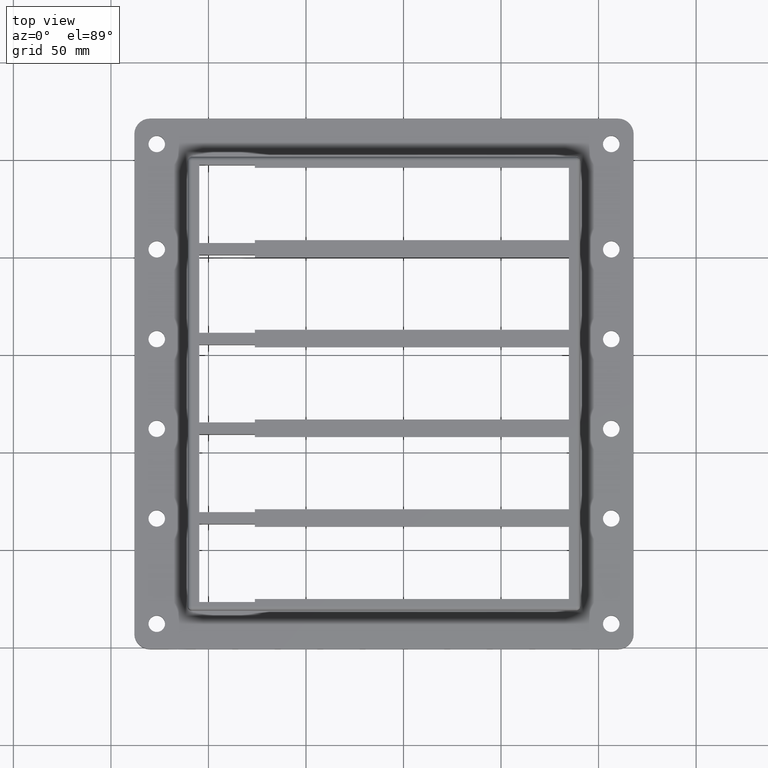
[diagram: clean part render]
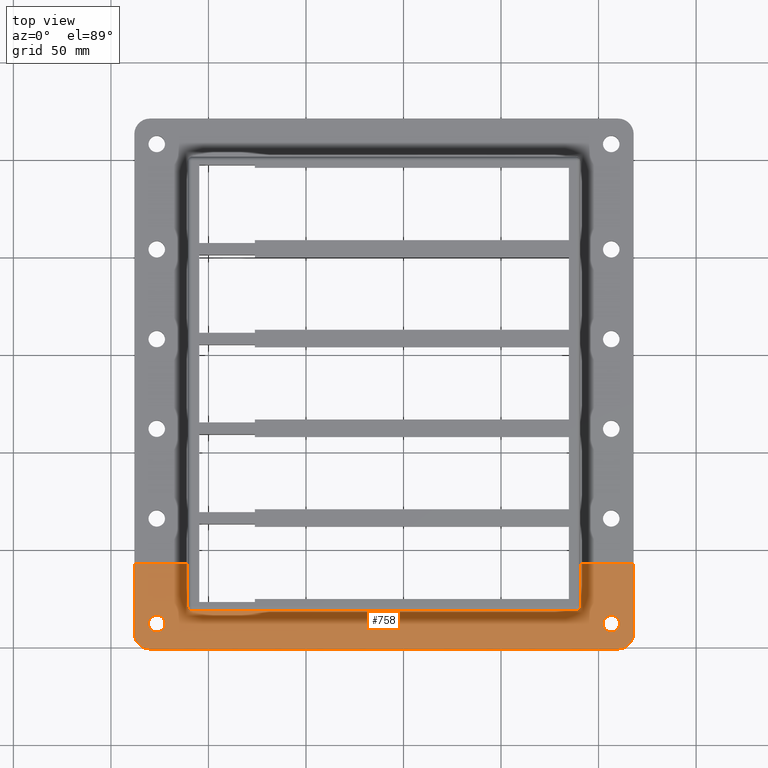
[diagram: same view with one face highlighted and labeled with its STEP entity id]
A machine part, top view. The second image highlights one B-rep face of the part: STEP entity #758.
In plain terms, the highlighted planar face has unit normal (0, 0, 1).
Its self-contained STEP definition (entity closure, byte-faithful):
#101=(
BOUNDED_CURVE()
B_SPLINE_CURVE(3,(#11080,#11081,#11082,#11083),.UNSPECIFIED.,.F.,.F.)
B_SPLINE_CURVE_WITH_KNOTS((4,4),(0.,1.),.UNSPECIFIED.)
CURVE()
GEOMETRIC_REPRESENTATION_ITEM()
RATIONAL_B_SPLINE_CURVE((1.,0.804755803080615,0.804755803080615,1.))
REPRESENTATION_ITEM('')
);
#102=(
BOUNDED_CURVE()
B_SPLINE_CURVE(3,(#11097,#11098,#11099,#11100),.UNSPECIFIED.,.F.,.F.)
B_SPLINE_CURVE_WITH_KNOTS((4,4),(0.,1.),.UNSPECIFIED.)
CURVE()
GEOMETRIC_REPRESENTATION_ITEM()
RATIONAL_B_SPLINE_CURVE((1.,0.804755803080618,0.804755803080618,1.))
REPRESENTATION_ITEM('')
);
#279=FACE_BOUND('',#1867,.T.);
#280=FACE_BOUND('',#1868,.T.);
#281=FACE_BOUND('',#1869,.T.);
#461=CIRCLE('',#7860,4.25);
#463=CIRCLE('',#7863,4.25);
#487=CIRCLE('',#7949,4.25);
#489=CIRCLE('',#7952,4.25);
#492=CIRCLE('',#7956,8.00000000000001);
#494=CIRCLE('',#7960,7.99999999999999);
#758=ADVANCED_FACE('',(#279,#280,#281),#1141,.T.);
#1141=PLANE('',#7975);
#1867=EDGE_LOOP('',(#2893,#2894,#2895,#2896,#2897,#2898,#2899,#2900,#2901,
#2902,#2903,#2904));
#1868=EDGE_LOOP('',(#2905,#2906));
#1869=EDGE_LOOP('',(#2907,#2908));
#2893=ORIENTED_EDGE('',*,*,#5373,.T.);
#2894=ORIENTED_EDGE('',*,*,#5388,.F.);
#2895=ORIENTED_EDGE('',*,*,#5381,.T.);
#2896=ORIENTED_EDGE('',*,*,#5338,.T.);
#2897=ORIENTED_EDGE('',*,*,#5342,.T.);
#2898=ORIENTED_EDGE('',*,*,#5345,.T.);
#2899=ORIENTED_EDGE('',*,*,#5389,.F.);
#2900=ORIENTED_EDGE('',*,*,#5390,.F.);
#2901=ORIENTED_EDGE('',*,*,#5391,.T.);
#2902=ORIENTED_EDGE('',*,*,#5365,.T.);
#2903=ORIENTED_EDGE('',*,*,#5367,.T.);
#2904=ORIENTED_EDGE('',*,*,#5372,.T.);
#2905=ORIENTED_EDGE('',*,*,#5359,.T.);
#2906=ORIENTED_EDGE('',*,*,#5205,.T.);
#2907=ORIENTED_EDGE('',*,*,#5361,.T.);
#2908=ORIENTED_EDGE('',*,*,#5201,.T.);
#4449=VERTEX_POINT('',#10795);
#4450=VERTEX_POINT('',#10796);
#4453=VERTEX_POINT('',#10804);
#4454=VERTEX_POINT('',#10805);
#4542=VERTEX_POINT('',#11079);
#4543=VERTEX_POINT('',#11084);
#4545=VERTEX_POINT('',#11090);
#4547=VERTEX_POINT('',#11096);
#4557=VERTEX_POINT('',#11143);
#4558=VERTEX_POINT('',#11145);
#4559=VERTEX_POINT('',#11149);
#4562=VERTEX_POINT('',#11157);
#4563=VERTEX_POINT('',#11162);
#4568=VERTEX_POINT('',#11178);
#4570=VERTEX_POINT('',#11193);
#4571=VERTEX_POINT('',#11195);
#5201=EDGE_CURVE('',#4449,#4450,#461,.T.);
#5205=EDGE_CURVE('',#4453,#4454,#463,.T.);
#5338=EDGE_CURVE('',#4543,#4542,#101,.T.);
#5342=EDGE_CURVE('',#4542,#4545,#6335,.T.);
#5345=EDGE_CURVE('',#4545,#4547,#102,.T.);
#5359=EDGE_CURVE('',#4454,#4453,#487,.T.);
#5361=EDGE_CURVE('',#4450,#4449,#489,.T.);
#5365=EDGE_CURVE('',#4558,#4557,#492,.T.);
#5367=EDGE_CURVE('',#4557,#4559,#6345,.T.);
#5372=EDGE_CURVE('',#4559,#4562,#494,.T.);
#5373=EDGE_CURVE('',#4562,#4563,#6349,.T.);
#5381=EDGE_CURVE('',#4568,#4543,#6356,.T.);
#5388=EDGE_CURVE('',#4568,#4563,#6360,.T.);
#5389=EDGE_CURVE('',#4570,#4547,#6361,.T.);
#5390=EDGE_CURVE('',#4571,#4570,#6362,.T.);
#5391=EDGE_CURVE('',#4571,#4558,#6363,.T.);
#6335=LINE('',#11091,#7181);
#6345=LINE('',#11148,#7191);
#6349=LINE('',#11161,#7195);
#6356=LINE('',#11177,#7202);
#6360=LINE('',#11191,#7206);
#6361=LINE('',#11192,#7207);
#6362=LINE('',#11194,#7208);
#6363=LINE('',#11196,#7209);
#7181=VECTOR('',#8967,1.);
#7191=VECTOR('',#9021,1.);
#7195=VECTOR('',#9035,1.);
#7202=VECTOR('',#9050,1.);
#7206=VECTOR('',#9070,1.);
#7207=VECTOR('',#9071,1.);
#7208=VECTOR('',#9072,1.);
#7209=VECTOR('',#9073,1.);
#7860=AXIS2_PLACEMENT_3D('',#10794,#8695,#8696);
#7863=AXIS2_PLACEMENT_3D('',#10803,#8703,#8704);
#7949=AXIS2_PLACEMENT_3D('',#11133,#9001,#9002);
#7952=AXIS2_PLACEMENT_3D('',#11136,#9007,#9008);
#7956=AXIS2_PLACEMENT_3D('',#11144,#9016,#9017);
#7960=AXIS2_PLACEMENT_3D('',#11158,#9029,#9030);
#7975=AXIS2_PLACEMENT_3D('',#11197,#9074,#9075);
#8695=DIRECTION('',(0.,0.,-1.));
#8696=DIRECTION('',(-1.,0.,0.));
#8703=DIRECTION('',(0.,0.,-1.));
#8704=DIRECTION('',(-1.,0.,0.));
#8967=DIRECTION('',(-1.,0.,0.));
#9001=DIRECTION('',(0.,0.,-1.));
#9002=DIRECTION('',(-1.,0.,0.));
#9007=DIRECTION('',(0.,0.,-1.));
#9008=DIRECTION('',(-1.,0.,0.));
#9016=DIRECTION('',(0.,0.,1.));
#9017=DIRECTION('',(-1.,0.,0.));
#9021=DIRECTION('',(1.,0.,0.));
#9029=DIRECTION('',(0.,0.,1.));
#9030=DIRECTION('',(-1.,0.,0.));
#9035=DIRECTION('',(0.,1.,0.));
#9050=DIRECTION('',(0.,-1.,0.));
#9070=DIRECTION('',(1.,0.,0.));
#9071=DIRECTION('',(3.66231254505022E-16,-1.,-3.19605173890909E-18));
#9072=DIRECTION('',(1.,0.,0.));
#9073=DIRECTION('',(0.,-1.,0.));
#9074=DIRECTION('',(0.,0.,1.));
#9075=DIRECTION('',(-1.,0.,0.));
#10794=CARTESIAN_POINT('',(-126.5,-238.,23.));
#10795=CARTESIAN_POINT('',(-122.25,-238.,23.));
#10796=CARTESIAN_POINT('',(-130.75,-238.,23.));
#10803=CARTESIAN_POINT('',(106.5,-238.,23.));
#10804=CARTESIAN_POINT('',(110.75,-238.,23.));
#10805=CARTESIAN_POINT('',(102.25,-238.,23.));
#11079=CARTESIAN_POINT('',(88.5873448317793,-231.337268677907,23.));
#11080=CARTESIAN_POINT('',(90.5872686779076,-229.337344831779,23.));
#11081=CARTESIAN_POINT('',(90.5872686779076,-230.508891573336,23.));
#11082=CARTESIAN_POINT('',(89.7588915733364,-231.337268677907,23.));
#11083=CARTESIAN_POINT('',(88.5873448317793,-231.337268677907,23.));
#11084=CARTESIAN_POINT('',(90.5872686779076,-229.337344831779,23.));
#11090=CARTESIAN_POINT('',(-108.587344831779,-231.337268677908,23.));
#11091=CARTESIAN_POINT('',(70.2377923714441,-231.337268677907,23.));
#11096=CARTESIAN_POINT('',(-110.587268677907,-229.337344831779,23.));
#11097=CARTESIAN_POINT('',(-108.587344831779,-231.337268677908,23.));
#11098=CARTESIAN_POINT('',(-109.758891573336,-231.337268677907,23.));
#11099=CARTESIAN_POINT('',(-110.587268677907,-230.508891573336,23.));
#11100=CARTESIAN_POINT('',(-110.587268677907,-229.337344831779,23.));
#11133=CARTESIAN_POINT('',(106.5,-238.,23.));
#11136=CARTESIAN_POINT('',(-126.5,-238.,23.));
#11143=CARTESIAN_POINT('',(-130.,-251.,23.));
#11144=CARTESIAN_POINT('',(-130.,-243.,23.));
#11145=CARTESIAN_POINT('',(-138.,-243.,23.));
#11148=CARTESIAN_POINT('',(70.2377923714441,-251.,23.));
#11149=CARTESIAN_POINT('',(110.,-251.,23.));
#11157=CARTESIAN_POINT('',(118.,-243.,23.));
#11158=CARTESIAN_POINT('',(110.,-243.,23.));
#11161=CARTESIAN_POINT('',(118.,-175.986433313938,23.));
#11162=CARTESIAN_POINT('',(118.,-207.,23.));
#11177=CARTESIAN_POINT('',(90.5872686779076,-175.986433313938,23.));
#11178=CARTESIAN_POINT('',(90.5872686779076,-207.,23.));
#11191=CARTESIAN_POINT('',(40.,-207.,23.));
#11192=CARTESIAN_POINT('',(-110.587268677907,-231.25,23.));
#11193=CARTESIAN_POINT('',(-110.587268677907,-207.,23.));
#11194=CARTESIAN_POINT('',(-2.8421709430404E-14,-207.,23.));
#11195=CARTESIAN_POINT('',(-138.,-207.,23.));
#11196=CARTESIAN_POINT('',(-138.,-175.986433313938,23.));
#11197=CARTESIAN_POINT('',(70.2377923714441,-175.986433313938,23.));